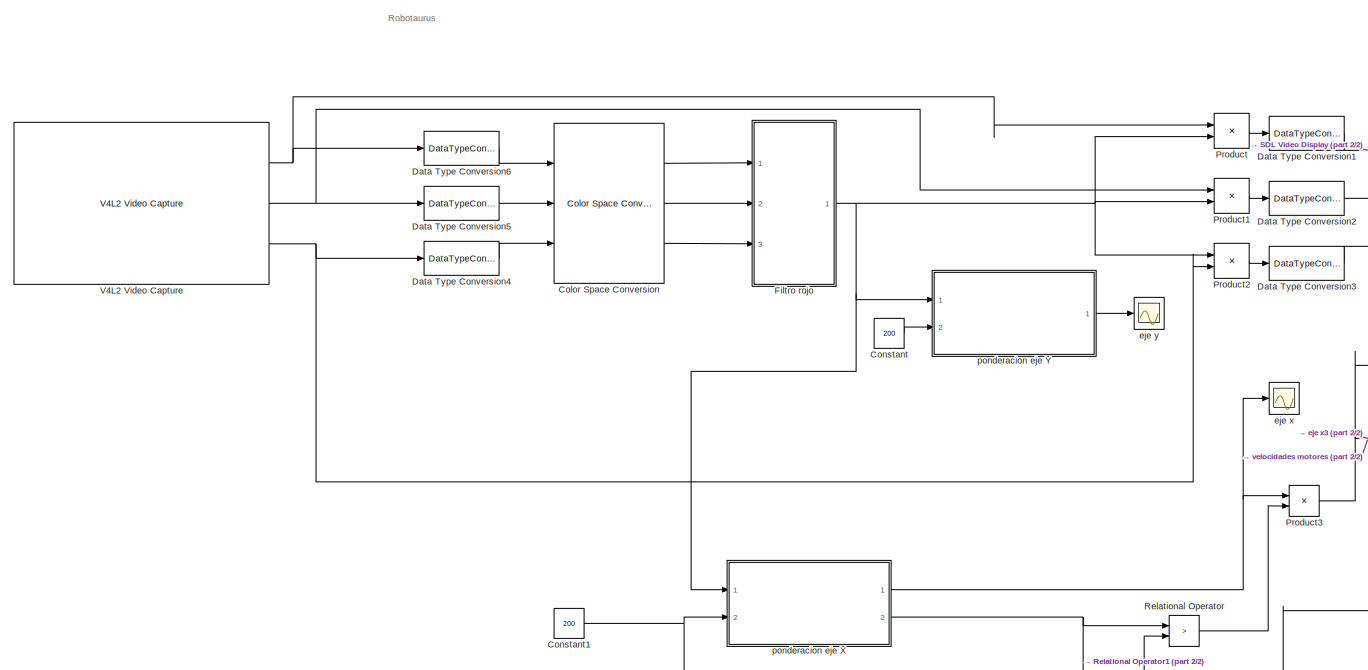
[diagram: root canvas - part 1/2, left side, full height]
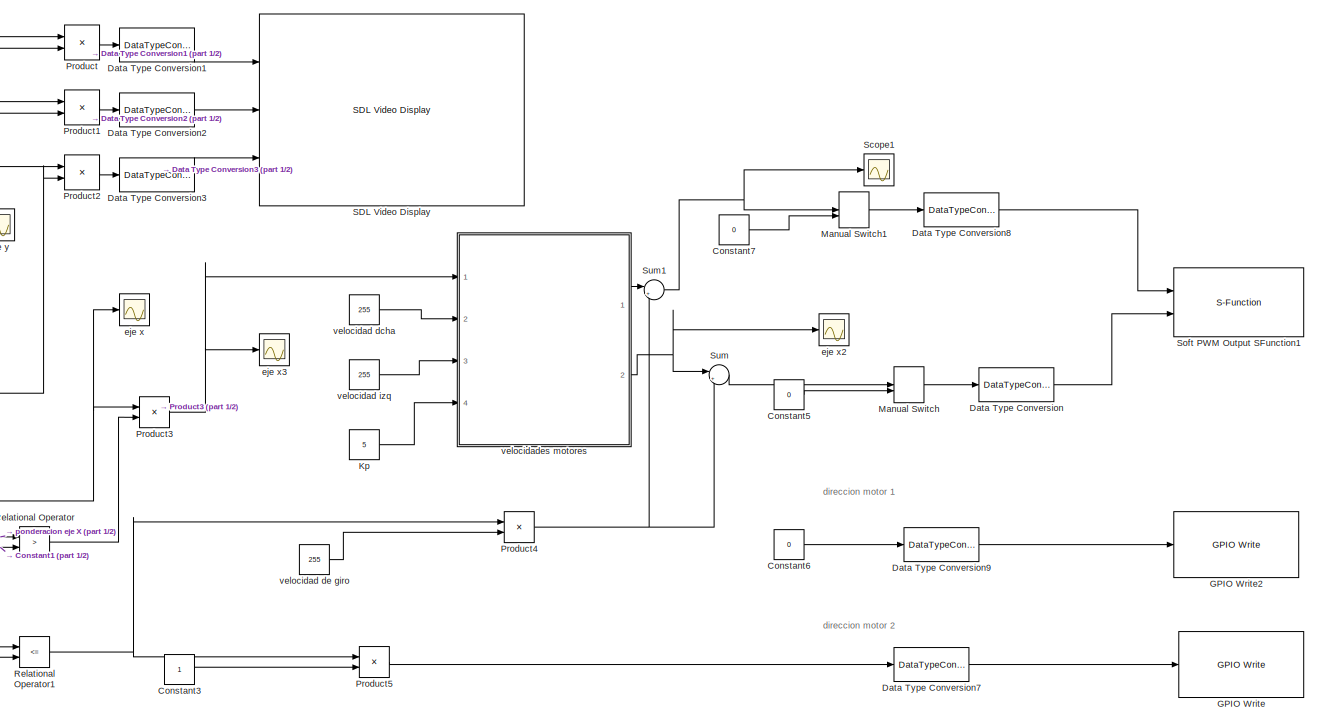
[diagram: root canvas - part 2/2, right side, full height]
MODEL slx_621bd8632e8a
KIND model
BLOCK [Reference] Color Space Conversion  REF=visionconversions/Color Space
 Conversion
  Ports = [3, 3]
  SourceBlock = visionconversions/Color Space\n Conversion
  SourceType = Color Space Conversion
  conversion = Obsolete
  conversionActive = R'G'B' to HSV
  imagePorts = Separate color signals
  rec = Rec. 601 (SDTV)
  sys = 1125/60/2:1
  wp_str = D65
BLOCK [Constant] Constant
  Value = 200
BLOCK [Constant] Constant1
  Value = 200
BLOCK [Constant] Constant3
BLOCK [Constant] Constant5
  Value = 0
BLOCK [Constant] Constant6
  Value = 0
BLOCK [Constant] Constant7
  Value = 0
BLOCK [DataTypeConversion] Data Type Conversion
  OutDataTypeStr = uint8
  RndMeth = Floor
  SaturateOnIntegerOverflow = off
BLOCK [DataTypeConversion] Data Type Conversion1
  RndMeth = Floor
  SaturateOnIntegerOverflow = off
BLOCK [DataTypeConversion] Data Type Conversion2
  RndMeth = Floor
  SaturateOnIntegerOverflow = off
BLOCK [DataTypeConversion] Data Type Conversion3
  RndMeth = Floor
  SaturateOnIntegerOverflow = off
BLOCK [DataTypeConversion] Data Type Conversion4
  RndMeth = Floor
  SaturateOnIntegerOverflow = off
BLOCK [DataTypeConversion] Data Type Conversion5
  RndMeth = Floor
  SaturateOnIntegerOverflow = off
BLOCK [DataTypeConversion] Data Type Conversion6
  RndMeth = Floor
  SaturateOnIntegerOverflow = off
BLOCK [DataTypeConversion] Data Type Conversion7
  OutDataTypeStr = boolean
  RndMeth = Floor
  SaturateOnIntegerOverflow = off
BLOCK [DataTypeConversion] Data Type Conversion8
  OutDataTypeStr = uint8
  RndMeth = Floor
  SaturateOnIntegerOverflow = off
BLOCK [DataTypeConversion] Data Type Conversion9
  OutDataTypeStr = boolean
  RndMeth = Floor
  SaturateOnIntegerOverflow = off
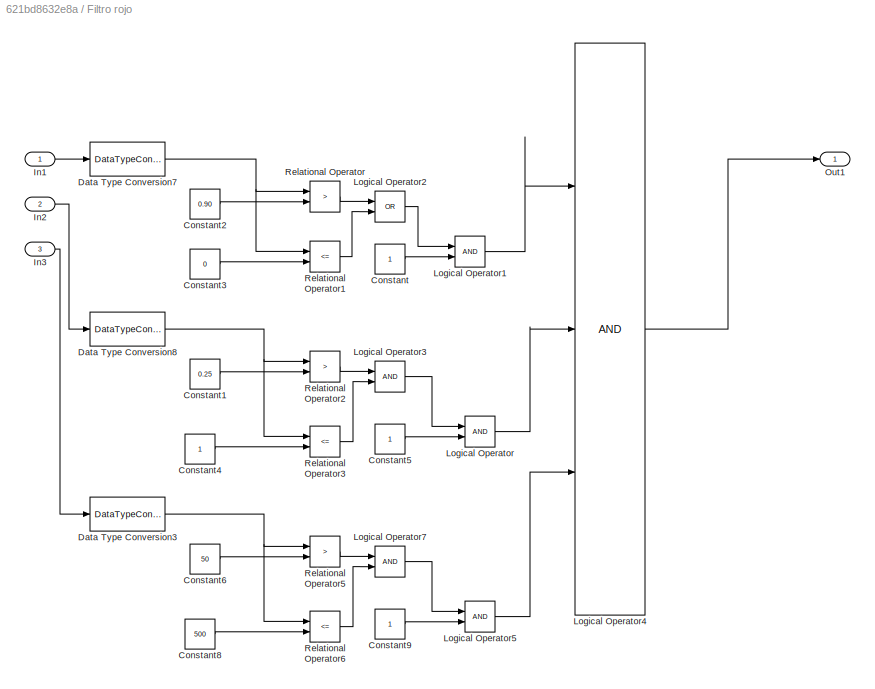
BLOCK [SubSystem] Filtro rojo
  Ports = [3, 1]
  RequestExecContextInheritance = off
BLOCK [Constant] Filtro rojo/Constant
BLOCK [Constant] Filtro rojo/Constant1
  Value = 0.25
BLOCK [Constant] Filtro rojo/Constant2
  Value = 0.90
BLOCK [Constant] Filtro rojo/Constant3
  Value = 0
BLOCK [Constant] Filtro rojo/Constant4
BLOCK [Constant] Filtro rojo/Constant5
BLOCK [Constant] Filtro rojo/Constant6
  Value = 50
BLOCK [Constant] Filtro rojo/Constant8
  Value = 500
BLOCK [Constant] Filtro rojo/Constant9
BLOCK [DataTypeConversion] Filtro rojo/Data Type Conversion3
  RndMeth = Floor
  SaturateOnIntegerOverflow = off
BLOCK [DataTypeConversion] Filtro rojo/Data Type Conversion7
  RndMeth = Floor
  SaturateOnIntegerOverflow = off
BLOCK [DataTypeConversion] Filtro rojo/Data Type Conversion8
  RndMeth = Floor
  SaturateOnIntegerOverflow = off
BLOCK [Inport] Filtro rojo/In1
  IconDisplay = Port number
BLOCK [Inport] Filtro rojo/In2
  IconDisplay = Port number
  Port = 2
BLOCK [Inport] Filtro rojo/In3
  IconDisplay = Port number
  Port = 3
BLOCK [Logic] Filtro rojo/Logical Operator
  AllPortsSameDT = off
  OutDataTypeStr = boolean
  Ports = [2, 1]
BLOCK [Logic] Filtro rojo/Logical Operator1
  AllPortsSameDT = off
  OutDataTypeStr = boolean
  Ports = [2, 1]
BLOCK [Logic] Filtro rojo/Logical Operator2
  AllPortsSameDT = off
  Operator = OR
  OutDataTypeStr = boolean
  Ports = [2, 1]
BLOCK [Logic] Filtro rojo/Logical Operator3
  AllPortsSameDT = off
  OutDataTypeStr = boolean
  Ports = [2, 1]
BLOCK [Logic] Filtro rojo/Logical Operator4
  AllPortsSameDT = off
  Inputs = 3
  OutDataTypeStr = boolean
  Ports = [3, 1]
BLOCK [Logic] Filtro rojo/Logical Operator5
  AllPortsSameDT = off
  OutDataTypeStr = boolean
  Ports = [2, 1]
BLOCK [Logic] Filtro rojo/Logical Operator7
  AllPortsSameDT = off
  OutDataTypeStr = boolean
  Ports = [2, 1]
BLOCK [Outport] Filtro rojo/Out1
  IconDisplay = Port number
BLOCK [RelationalOperator] Filtro rojo/Relational Operator
  InputSameDT = off
  Operator = >
  OutDataTypeStr = boolean
  Ports = [2, 1]
BLOCK [RelationalOperator] Filtro rojo/Relational Operator1
  InputSameDT = off
  Operator = <=
  OutDataTypeStr = boolean
  Ports = [2, 1]
BLOCK [RelationalOperator] Filtro rojo/Relational Operator2
  InputSameDT = off
  Operator = >
  OutDataTypeStr = boolean
  Ports = [2, 1]
BLOCK [RelationalOperator] Filtro rojo/Relational Operator3
  InputSameDT = off
  Operator = <=
  OutDataTypeStr = boolean
  Ports = [2, 1]
BLOCK [RelationalOperator] Filtro rojo/Relational Operator5
  InputSameDT = off
  Operator = >
  OutDataTypeStr = boolean
  Ports = [2, 1]
BLOCK [RelationalOperator] Filtro rojo/Relational Operator6
  InputSameDT = off
  Operator = <=
  OutDataTypeStr = boolean
  Ports = [2, 1]
BLOCK [Reference] GPIO Write  REF=embdlinuxlib/GPIO Write
  Ports = [1]
  SourceBlock = embdlinuxlib/GPIO Write
  SourceType = GPIO Write
  blockPlatform = Raspberry Pi
  board = Model B Rev2
  direction = Output
  gpio = 4
BLOCK [Reference] GPIO Write2  REF=embdlinuxlib/GPIO Write
  Ports = [1]
  SourceBlock = embdlinuxlib/GPIO Write
  SourceType = GPIO Write
  blockPlatform = Raspberry Pi
  board = Model B Rev2
  direction = Output
  gpio = 25
BLOCK [Constant] Kp
  Value = 5
BLOCK [ManualSwitch] Manual Switch
BLOCK [ManualSwitch] Manual Switch1
BLOCK [Product] Product
  InputSameDT = off
  OutDataTypeStr = Inherit: Inherit via internal rule
  Ports = [2, 1]
  RndMeth = Floor
  SaturateOnIntegerOverflow = off
BLOCK [Product] Product1
  InputSameDT = off
  OutDataTypeStr = Inherit: Inherit via internal rule
  Ports = [2, 1]
  RndMeth = Floor
  SaturateOnIntegerOverflow = off
BLOCK [Product] Product2
  InputSameDT = off
  OutDataTypeStr = Inherit: Inherit via internal rule
  Ports = [2, 1]
  RndMeth = Floor
  SaturateOnIntegerOverflow = off
BLOCK [Product] Product3
  InputSameDT = off
  OutDataTypeStr = Inherit: Inherit via internal rule
  Ports = [2, 1]
  RndMeth = Floor
  SaturateOnIntegerOverflow = off
BLOCK [Product] Product4
  InputSameDT = off
  OutDataTypeStr = Inherit: Inherit via internal rule
  Ports = [2, 1]
  RndMeth = Floor
  SaturateOnIntegerOverflow = off
BLOCK [Product] Product5
  InputSameDT = off
  OutDataTypeStr = Inherit: Inherit via internal rule
  Ports = [2, 1]
  RndMeth = Floor
  SaturateOnIntegerOverflow = off
BLOCK [RelationalOperator] Relational Operator
  InputSameDT = off
  Operator = >
  OutDataTypeStr = boolean
  Ports = [2, 1]
BLOCK [RelationalOperator] Relational Operator1
  InputSameDT = off
  Operator = <=
  OutDataTypeStr = boolean
  Ports = [2, 1]
BLOCK [Reference] SDL Video Display  REF=embdlinuxlib/SDL Video Display
  Ports = [3]
  SourceBlock = embdlinuxlib/SDL Video Display
  SourceType = SDL Video Display
  blockPlatform = Raspberry Pi
  pixelFormat = RGB
  pixelOrder = Planar
  rowMajor = on
BLOCK [Scope] Scope1
  Floating = off
  NumInputPorts = 1
  Ports = [1]
  SaveName = ScopeData3
  ShowLegends = off
  YMax = 255
  YMin = 200
BLOCK [S-Function] Soft PWM Output SFunction1
  CopyFcn = set_param(gcbh,'LinkStatus','none')
  EnableBusSupport = off
  FunctionName = sfcn_PWM_Out2
  InitFcn = try, set_param(gcb,'FunctionName','sfcn_PWM_Out2'), end
  OpenFcn = sfunctionwizard(gcbh)
  Parameters = uint8([0,12])
  Ports = [2]
  PreSaveFcn = try, set_param(gcb,'FunctionName','sfcn_PWM_Out2'), end
  SFunctionModules = sfcn_PWM_Out2_wrapper
BLOCK [Sum] Sum
  IconShape = round
  InputSameDT = off
  Inputs = |++
  OutDataTypeStr = Inherit: Inherit via internal rule
  Ports = [2, 1]
  SaturateOnIntegerOverflow = off
BLOCK [Sum] Sum1
  IconShape = round
  InputSameDT = off
  Inputs = |++
  OutDataTypeStr = Inherit: Inherit via internal rule
  Ports = [2, 1]
  SaturateOnIntegerOverflow = off
BLOCK [Reference] V4L2 Video Capture  REF=embdlinuxlib/V4L2 Video Capture
  Ports = [0, 3]
  SourceBlock = embdlinuxlib/V4L2 Video Capture
  SourceType = V4L2 Video Capture
  blockPlatform = Raspberry Pi
  imSize = [640, 480]
  imSizeSelection = 160x120
  m_devName = '/dev/video0'
  pixelFormat = RGB
  pixelOrder = Planar
  roi = [0, 0, 640, 480]
  sampleTime = 1/10
  simOutput = Colorbars
BLOCK [Scope] eje x
  Floating = off
  NumInputPorts = 1
  Ports = [1]
  SaveName = ScopeData1
  ShowLegends = off
  YMax = 35
  YMin = -50
BLOCK [Scope] eje x2
  Floating = off
  NumInputPorts = 1
  Ports = [1]
  SaveName = ScopeData5
  ShowLegends = off
  TimeRange = 10
  YMax = 255
  YMin = 232.5
BLOCK [Scope] eje x3
  Floating = off
  NumInputPorts = 1
  Ports = [1]
  SaveName = ScopeData6
  ShowLegends = off
  YMax = 15
  YMin = -60
BLOCK [Scope] eje y
  Floating = off
  NumInputPorts = 1
  Ports = [1]
  ShowLegends = off
  YMax = 55
  YMin = -30
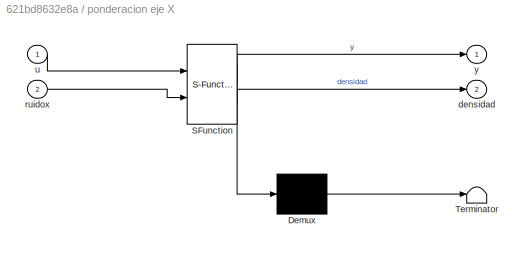
BLOCK [SubSystem] ponderacion eje X
  ErrorFcn = Stateflow.Translate.translate
  PermitHierarchicalResolution = ExplicitOnly
  Ports = [2, 2]
  RequestExecContextInheritance = off
  SFBlockType = MATLAB Function
  TreatAsAtomicUnit = on
BLOCK [Demux] ponderacion eje X/ Demux 
  Outputs = 1
  Ports = [1, 1]
BLOCK [S-Function] ponderacion eje X/ SFunction 
  EnableBusSupport = on
  FunctionName = sf_sfun
  PortCounts = [2 3]
  Ports = [2, 3]
  Tag = Stateflow S-Function raspberrypi_robotaurus3 1
BLOCK [Terminator] ponderacion eje X/ Terminator 
BLOCK [Outport] ponderacion eje X/densidad
  IconDisplay = Port number
  Port = 2
BLOCK [Inport] ponderacion eje X/ruidox
  IconDisplay = Port number
  Port = 2
BLOCK [Inport] ponderacion eje X/u
  IconDisplay = Port number
BLOCK [Outport] ponderacion eje X/y
  IconDisplay = Port number
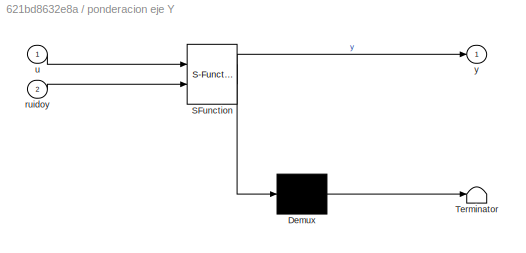
BLOCK [SubSystem] ponderacion eje Y
  ErrorFcn = Stateflow.Translate.translate
  PermitHierarchicalResolution = ExplicitOnly
  Ports = [2, 1]
  RequestExecContextInheritance = off
  SFBlockType = MATLAB Function
  TreatAsAtomicUnit = on
BLOCK [Demux] ponderacion eje Y/ Demux 
  Outputs = 1
  Ports = [1, 1]
BLOCK [S-Function] ponderacion eje Y/ SFunction 
  EnableBusSupport = on
  FunctionName = sf_sfun
  PortCounts = [2 2]
  Ports = [2, 2]
  Tag = Stateflow S-Function raspberrypi_robotaurus3 2
BLOCK [Terminator] ponderacion eje Y/ Terminator 
BLOCK [Inport] ponderacion eje Y/ruidoy
  IconDisplay = Port number
  Port = 2
BLOCK [Inport] ponderacion eje Y/u
  IconDisplay = Port number
BLOCK [Outport] ponderacion eje Y/y
  IconDisplay = Port number
BLOCK [Constant] velocidad dcha
  Value = 255
BLOCK [Constant] velocidad de giro
  Value = 255
BLOCK [Constant] velocidad izq
  Value = 255
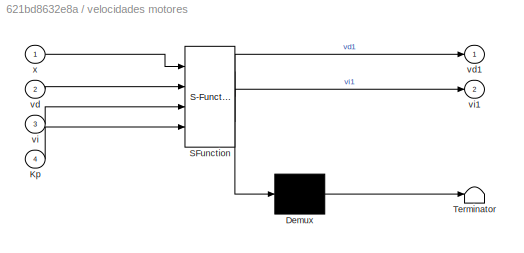
BLOCK [SubSystem] velocidades motores
  ErrorFcn = Stateflow.Translate.translate
  PermitHierarchicalResolution = ExplicitOnly
  Ports = [4, 2]
  RequestExecContextInheritance = off
  SFBlockType = MATLAB Function
  TreatAsAtomicUnit = on
BLOCK [Demux] velocidades motores/ Demux 
  Outputs = 1
  Ports = [1, 1]
BLOCK [S-Function] velocidades motores/ SFunction 
  EnableBusSupport = on
  FunctionName = sf_sfun
  PortCounts = [4 3]
  Ports = [4, 3]
  Tag = Stateflow S-Function raspberrypi_robotaurus3 3
BLOCK [Terminator] velocidades motores/ Terminator 
BLOCK [Inport] velocidades motores/Kp
  IconDisplay = Port number
  Port = 4
BLOCK [Inport] velocidades motores/vd
  IconDisplay = Port number
  Port = 2
BLOCK [Outport] velocidades motores/vd1
  IconDisplay = Port number
BLOCK [Inport] velocidades motores/vi
  IconDisplay = Port number
  Port = 3
BLOCK [Outport] velocidades motores/vi1
  IconDisplay = Port number
  Port = 2
BLOCK [Inport] velocidades motores/x
  IconDisplay = Port number
ANNOTATION (root): Robotaurus
ANNOTATION (root): direccion motor 1
ANNOTATION (root): direccion motor 2
LINE Color Space Conversion:1 -> Filtro rojo:1
LINE Color Space Conversion:2 -> Filtro rojo:2
LINE Color Space Conversion:3 -> Filtro rojo:3
NET Constant1:1 -> Relational Operator1:2, Relational Operator:2, ponderacion eje X:2
LINE Constant3:1 -> Product5:2
LINE Constant5:1 -> Manual Switch:2
LINE Constant6:1 -> Data Type Conversion9:1
LINE Constant7:1 -> Manual Switch1:2
LINE Constant:1 -> ponderacion eje Y:2
LINE Data Type Conversion1:1 -> SDL Video Display:1
LINE Data Type Conversion2:1 -> SDL Video Display:2
LINE Data Type Conversion3:1 -> SDL Video Display:3
LINE Data Type Conversion4:1 -> Color Space Conversion:3
LINE Data Type Conversion5:1 -> Color Space Conversion:2
LINE Data Type Conversion6:1 -> Color Space Conversion:1
LINE Data Type Conversion7:1 -> GPIO Write:1
LINE Data Type Conversion8:1 -> Soft PWM Output SFunction1:1
LINE Data Type Conversion9:1 -> GPIO Write2:1
LINE Data Type Conversion:1 -> Soft PWM Output SFunction1:2
LINE Filtro rojo/Constant1:1 -> Filtro rojo/Relational Operator2:2
LINE Filtro rojo/Constant2:1 -> Filtro rojo/Relational Operator:2
LINE Filtro rojo/Constant3:1 -> Filtro rojo/Relational Operator1:2
LINE Filtro rojo/Constant4:1 -> Filtro rojo/Relational Operator3:2
LINE Filtro rojo/Constant5:1 -> Filtro rojo/Logical Operator:2
LINE Filtro rojo/Constant6:1 -> Filtro rojo/Relational Operator5:2
LINE Filtro rojo/Constant8:1 -> Filtro rojo/Relational Operator6:2
LINE Filtro rojo/Constant9:1 -> Filtro rojo/Logical Operator5:2
LINE Filtro rojo/Constant:1 -> Filtro rojo/Logical Operator1:2
NET Filtro rojo/Data Type Conversion3:1 -> Filtro rojo/Relational Operator5:1, Filtro rojo/Relational Operator6:1
NET Filtro rojo/Data Type Conversion7:1 -> Filtro rojo/Relational Operator1:1, Filtro rojo/Relational Operator:1
NET Filtro rojo/Data Type Conversion8:1 -> Filtro rojo/Relational Operator2:1, Filtro rojo/Relational Operator3:1
LINE Filtro rojo/In1:1 -> Filtro rojo/Data Type Conversion7:1
LINE Filtro rojo/In2:1 -> Filtro rojo/Data Type Conversion8:1
LINE Filtro rojo/In3:1 -> Filtro rojo/Data Type Conversion3:1
LINE Filtro rojo/Logical Operator1:1 -> Filtro rojo/Logical Operator4:1
LINE Filtro rojo/Logical Operator2:1 -> Filtro rojo/Logical Operator1:1
LINE Filtro rojo/Logical Operator3:1 -> Filtro rojo/Logical Operator:1
LINE Filtro rojo/Logical Operator4:1 -> Filtro rojo/Out1:1
LINE Filtro rojo/Logical Operator5:1 -> Filtro rojo/Logical Operator4:3
LINE Filtro rojo/Logical Operator7:1 -> Filtro rojo/Logical Operator5:1
LINE Filtro rojo/Logical Operator:1 -> Filtro rojo/Logical Operator4:2
LINE Filtro rojo/Relational Operator1:1 -> Filtro rojo/Logical Operator2:2
LINE Filtro rojo/Relational Operator2:1 -> Filtro rojo/Logical Operator3:1
LINE Filtro rojo/Relational Operator3:1 -> Filtro rojo/Logical Operator3:2
LINE Filtro rojo/Relational Operator5:1 -> Filtro rojo/Logical Operator7:1
LINE Filtro rojo/Relational Operator6:1 -> Filtro rojo/Logical Operator7:2
LINE Filtro rojo/Relational Operator:1 -> Filtro rojo/Logical Operator2:1
NET Filtro rojo:1 -> Product1:2, Product2:1, Product:2, ponderacion eje X:1, ponderacion eje Y:1
LINE Kp:1 -> velocidades motores:4
LINE Manual Switch1:1 -> Data Type Conversion8:1
LINE Manual Switch:1 -> Data Type Conversion:1
LINE Product1:1 -> Data Type Conversion2:1
LINE Product2:1 -> Data Type Conversion3:1
NET Product3:1 -> eje x3:1, velocidades motores:1
NET Product4:1 -> Sum1:2, Sum:2
LINE Product5:1 -> Data Type Conversion7:1
LINE Product:1 -> Data Type Conversion1:1
NET Relational Operator1:1 -> Product4:1, Product5:1
LINE Relational Operator:1 -> Product3:2
NET Sum1:1 -> Manual Switch1:1, Scope1:1
LINE Sum:1 -> Manual Switch:1
NET V4L2 Video Capture:1 -> Data Type Conversion6:1, Product:1
NET V4L2 Video Capture:2 -> Data Type Conversion5:1, Product1:1
NET V4L2 Video Capture:3 -> Data Type Conversion4:1, Product2:2
NET ponderacion eje X:1 -> Product3:1, eje x:1
NET ponderacion eje X:2 -> Relational Operator1:1, Relational Operator:1
LINE ponderacion eje Y:1 -> eje y:1
LINE velocidad dcha:1 -> velocidades motores:2
LINE velocidad de giro:1 -> Product4:2
LINE velocidad izq:1 -> velocidades motores:3
LINE velocidades motores:1 -> Sum1:1
NET velocidades motores:2 -> Sum:1, eje x2:1
note: NET lines group one-source signal fan-out (src -> all destinations, sorted); 1:1 wires keep LINE
